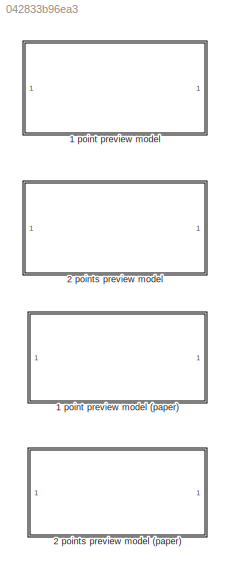
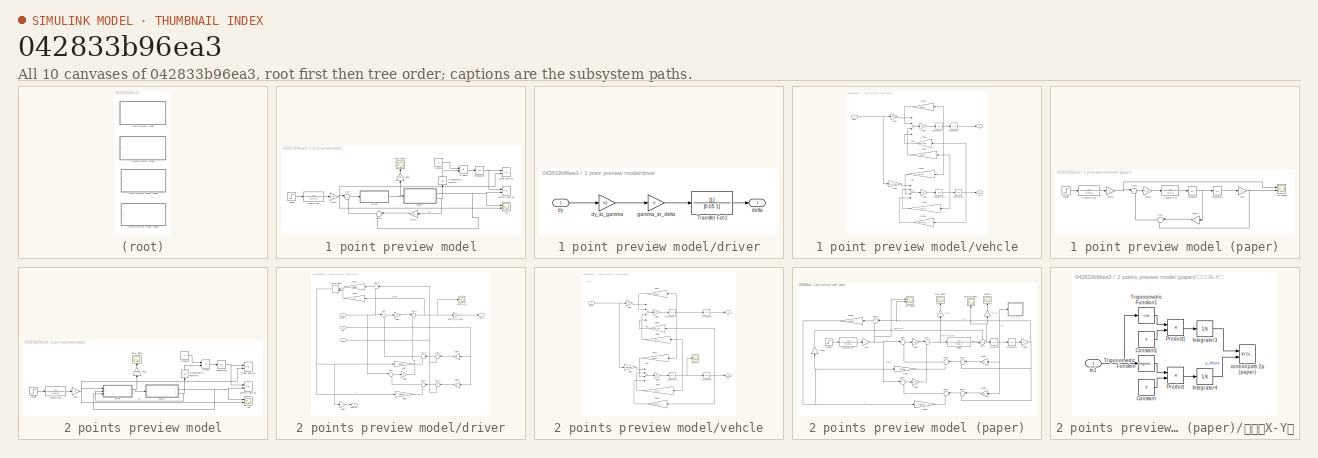
[diagram: thumbnail index - all 10 canvases of the model, root first then tree order]
MODEL slx_042833b96ea3
KIND model
CONFIG AbsTol = auto
CONFIG EnableMultiTasking = off
CONFIG FixedStep = auto
CONFIG MaxStep = auto
CONFIG MinStep = auto
CONFIG RelTol = 1e-3
CONFIG SampleTimeConstraint = Unconstrained
CONFIG Solver = VariableStepAuto
CONFIG SolverName = VariableStepAuto
CONFIG StartTime = 0.0
CONFIG StopTime = tf
BLOCK [SubSystem] 1 point preview model
  Ports = []
  RequestExecContextInheritance = off
BLOCK [SubSystem] 1 point preview model (paper)
  Ports = []
  RequestExecContextInheritance = off
BLOCK [Gain] 1 point preview model (paper)/Gain
  Gain = V
  OutDataTypeStr = Inherit: Inherit via internal rule
  ParamDataTypeStr = Inherit: Inherit via internal rule
  SaturateOnIntegerOverflow = off
BLOCK [Gain] 1 point preview model (paper)/Gain1
  Gain = 2*V/(lp*lp)
  OutDataTypeStr = Inherit: Inherit via internal rule
  ParamDataTypeStr = Inherit: Inherit via internal rule
  SaturateOnIntegerOverflow = off
BLOCK [Gain] 1 point preview model (paper)/Gain2
  Gain = lp
  OutDataTypeStr = Inherit: Inherit via internal rule
  ParamDataTypeStr = Inherit: Inherit via internal rule
  SaturateOnIntegerOverflow = off
BLOCK [Gain] 1 point preview model (paper)/Gain3
  Gain = y0
  OutDataTypeStr = Inherit: Inherit via internal rule
  ParamDataTypeStr = Inherit: Inherit via internal rule
  SaturateOnIntegerOverflow = off
BLOCK [Integrator] 1 point preview model (paper)/Integrator
  Ports = [1, 1]
BLOCK [Integrator] 1 point preview model (paper)/Integrator1
  Ports = [1, 1]
BLOCK [Sum] 1 point preview model (paper)/Sum
  IconShape = round
  InputSameDT = off
  Inputs = |++
  OutDataTypeStr = Inherit: Inherit via internal rule
  Ports = [2, 1]
  SaturateOnIntegerOverflow = off
BLOCK [Sum] 1 point preview model (paper)/Sum1
  IconShape = round
  InputSameDT = off
  Inputs = |+-
  OutDataTypeStr = Inherit: Inherit via internal rule
  Ports = [2, 1]
  SaturateOnIntegerOverflow = off
BLOCK [TransferFcn] 1 point preview model (paper)/Transfer Fcn
  Denominator = [0.1 1]
BLOCK [TransferFcn] 1 point preview model (paper)/Transfer Fcn1
  Denominator = [0.05 1]
BLOCK [Step] 1 point preview model (paper)/target 
  SampleTime = dt
BLOCK [Scope] 1 point preview model (paper)/y 1p (paper)
  Floating = off
  NumInputPorts = 2
  Ports = [2]
  ScopeSpecificationString = Simulink.scopes.TimeScopeBlockCfg('CurrentConfiguration', extmgr.ConfigurationSet(extmgr.Configuration('Core','General UI',true),extmgr.Configuration('Core','Source UI',true),extmgr.Configuration('Sources','WiredSimulink',true,'DataLoggingVariableName','ScopeData1'),extmgr.Configuration('Visuals','Time Domain',true,'SerializedDisplays',{struct('MinYLimReal','-0.26486','MaxYLimReal','2.38375','YLab...<+1398ch>
BLOCK [Constant] 1 point preview model/Constant
  Value = V
BLOCK [Gain] 1 point preview model/Gain
  Gain = y0
  OutDataTypeStr = Inherit: Inherit via internal rule
  ParamDataTypeStr = Inherit: Inherit via internal rule
  SaturateOnIntegerOverflow = off
BLOCK [Gain] 1 point preview model/Gain3
  Gain = lp
  OutDataTypeStr = Inherit: Inherit via internal rule
  ParamDataTypeStr = Inherit: Inherit via internal rule
  SaturateOnIntegerOverflow = off
BLOCK [Integrator] 1 point preview model/Integrator2
  Ports = [1, 1]
BLOCK [Product] 1 point preview model/Product
  InputSameDT = off
  OutDataTypeStr = Inherit: Inherit via internal rule
  Ports = [2, 1]
  RndMeth = Floor
  SaturateOnIntegerOverflow = off
BLOCK [Sum] 1 point preview model/Sum
  IconShape = round
  InputSameDT = off
  Inputs = |+-
  OutDataTypeStr = Inherit: Inherit via internal rule
  Ports = [2, 1]
  SaturateOnIntegerOverflow = off
BLOCK [Sum] 1 point preview model/Sum1
  IconShape = round
  InputSameDT = off
  Inputs = |++
  OutDataTypeStr = Inherit: Inherit via internal rule
  Ports = [2, 1]
  SaturateOnIntegerOverflow = off
BLOCK [TransferFcn] 1 point preview model/Transfer Fcn
  Denominator = [0.05 1]
BLOCK [Trigonometry] 1 point preview model/Trigonometric Function
  Operator = cos
  Ports = [1, 1]
BLOCK [Reference] 1 point preview model/controll path 1p  REF=simulink/Sinks/XY Graph
  Ports = [2]
  SourceBlock = simulink/Sinks/XY Graph
  SourceProductBaseCode = SL
  SourceProductName = Simulink
  SourceType = XY scope.
BLOCK [SubSystem] 1 point preview model/driver
  Ports = [1, 1]
  RequestExecContextInheritance = off
BLOCK [TransferFcn] 1 point preview model/driver/Transfer Fcn1
  Denominator = [0.05 1]
BLOCK [Outport] 1 point preview model/driver/delta
  IconDisplay = Port number
BLOCK [Inport] 1 point preview model/driver/dy
  IconDisplay = Port number
BLOCK [Gain] 1 point preview model/driver/dy_to_gamma
  Gain = h1
  OutDataTypeStr = Inherit: Inherit via internal rule
  ParamDataTypeStr = Inherit: Inherit via internal rule
  SaturateOnIntegerOverflow = off
BLOCK [Gain] 1 point preview model/driver/gamma_to_delta
  Gain = h
  OutDataTypeStr = Inherit: Inherit via internal rule
  ParamDataTypeStr = Inherit: Inherit via internal rule
  SaturateOnIntegerOverflow = off
BLOCK [Gain] 1 point preview model/gear
  Gain = n*180/pi
  OutDataTypeStr = Inherit: Inherit via internal rule
  ParamDataTypeStr = Inherit: Inherit via internal rule
  SaturateOnIntegerOverflow = off
BLOCK [Scope] 1 point preview model/steer angle
  Floating = off
  NumInputPorts = 1
  Ports = [1]
  ScopeSpecificationString = Simulink.scopes.TimeScopeBlockCfg('CurrentConfiguration', extmgr.ConfigurationSet(extmgr.Configuration('Core','General UI',true),extmgr.Configuration('Core','Source UI',true),extmgr.Configuration('Sources','WiredSimulink',true,'DataLoggingVariableName','ScopeData1'),extmgr.Configuration('Visuals','Time Domain',true,'SerializedDisplays',{struct('MinYLimReal','-5.65132','MaxYLimReal','15.49374','YLa...<+1368ch>
BLOCK [Step] 1 point preview model/target 
  SampleTime = dt
BLOCK [Reference] 1 point preview model/target path 1p  REF=simulink/Sinks/XY Graph
  Ports = [2]
  SourceBlock = simulink/Sinks/XY Graph
  SourceProductBaseCode = SL
  SourceProductName = Simulink
  SourceType = XY scope.
BLOCK [SubSystem] 1 point preview model/vehcle
  Ports = [1, 2]
  RequestExecContextInheritance = off
BLOCK [Sum] 1 point preview model/vehcle/Add
  InputSameDT = off
  Inputs = ++++
  OutDataTypeStr = Inherit: Inherit via internal rule
  Ports = [4, 1]
  SaturateOnIntegerOverflow = off
BLOCK [Sum] 1 point preview model/vehcle/Add1
  InputSameDT = off
  Inputs = ++++
  OutDataTypeStr = Inherit: Inherit via internal rule
  Ports = [4, 1]
  SaturateOnIntegerOverflow = off
BLOCK [Gain] 1 point preview model/vehcle/Gain1
  Gain = 2*Kf
  OutDataTypeStr = Inherit: Inherit via internal rule
  ParamDataTypeStr = Inherit: Inherit via internal rule
  SaturateOnIntegerOverflow = off
BLOCK [Gain] 1 point preview model/vehcle/Gain10
  Gain = 2*(Kf+Kr)
  OutDataTypeStr = Inherit: Inherit via internal rule
  ParamDataTypeStr = Inherit: Inherit via internal rule
  SaturateOnIntegerOverflow = off
BLOCK [Gain] 1 point preview model/vehcle/Gain11
  Gain = 2*(lf*Kf-lr*Kr)
  OutDataTypeStr = Inherit: Inherit via internal rule
  ParamDataTypeStr = Inherit: Inherit via internal rule
  SaturateOnIntegerOverflow = off
BLOCK [Gain] 1 point preview model/vehcle/Gain12
  Gain = -(2*(lf*Kf-lr*Kr)/V)
  OutDataTypeStr = Inherit: Inherit via internal rule
  ParamDataTypeStr = Inherit: Inherit via internal rule
  SaturateOnIntegerOverflow = off
BLOCK [Gain] 1 point preview model/vehcle/Gain4
  Gain = 2*lf*Kf
  OutDataTypeStr = Inherit: Inherit via internal rule
  ParamDataTypeStr = Inherit: Inherit via internal rule
  SaturateOnIntegerOverflow = off
BLOCK [Gain] 1 point preview model/vehcle/Gain5
  Gain = 1/m
  OutDataTypeStr = Inherit: Inherit via internal rule
  ParamDataTypeStr = Inherit: Inherit via internal rule
  SaturateOnIntegerOverflow = off
BLOCK [Gain] 1 point preview model/vehcle/Gain6
  Gain = 1/I
  OutDataTypeStr = Inherit: Inherit via internal rule
  ParamDataTypeStr = Inherit: Inherit via internal rule
  SaturateOnIntegerOverflow = off
BLOCK [Gain] 1 point preview model/vehcle/Gain7
  Gain = -(2*(Kf+Kr)/V)
  OutDataTypeStr = Inherit: Inherit via internal rule
  ParamDataTypeStr = Inherit: Inherit via internal rule
  SaturateOnIntegerOverflow = off
BLOCK [Gain] 1 point preview model/vehcle/Gain8
  Gain = -(2*(lf*Kf-lr*Kr)/V)
  OutDataTypeStr = Inherit: Inherit via internal rule
  ParamDataTypeStr = Inherit: Inherit via internal rule
  SaturateOnIntegerOverflow = off
BLOCK [Gain] 1 point preview model/vehcle/Gain9
  Gain = -(2*(lf*lf*Kf+lr*lr*Kr)/V)
  OutDataTypeStr = Inherit: Inherit via internal rule
  ParamDataTypeStr = Inherit: Inherit via internal rule
  SaturateOnIntegerOverflow = off
BLOCK [Integrator] 1 point preview model/vehcle/Integrator2
  Ports = [1, 1]
BLOCK [Integrator] 1 point preview model/vehcle/Integrator3
  Ports = [1, 1]
BLOCK [Integrator] 1 point preview model/vehcle/Integrator4
  Ports = [1, 1]
BLOCK [Integrator] 1 point preview model/vehcle/Integrator5
  Ports = [1, 1]
BLOCK [Inport] 1 point preview model/vehcle/delta
  IconDisplay = Port number
BLOCK [Outport] 1 point preview model/vehcle/phi
  IconDisplay = Port number
  Port = 2
BLOCK [Outport] 1 point preview model/vehcle/yc
  IconDisplay = Port number
BLOCK [Scope] 1 point preview model/y 1p
  Floating = off
  NumInputPorts = 2
  Ports = [2]
  ScopeSpecificationString = Simulink.scopes.TimeScopeBlockCfg('CurrentConfiguration', extmgr.ConfigurationSet(extmgr.Configuration('Core','General UI',true),extmgr.Configuration('Core','Source UI',true),extmgr.Configuration('Sources','WiredSimulink',true,'DataLoggingVariableName','ScopeData3'),extmgr.Configuration('Visuals','Time Domain',true,'SerializedDisplays',{struct('MinYLimReal','-0.28187','MaxYLimReal','2.53683','YLab...<+1374ch>
BLOCK [SubSystem] 2 points preview model
  Ports = []
  RequestExecContextInheritance = off
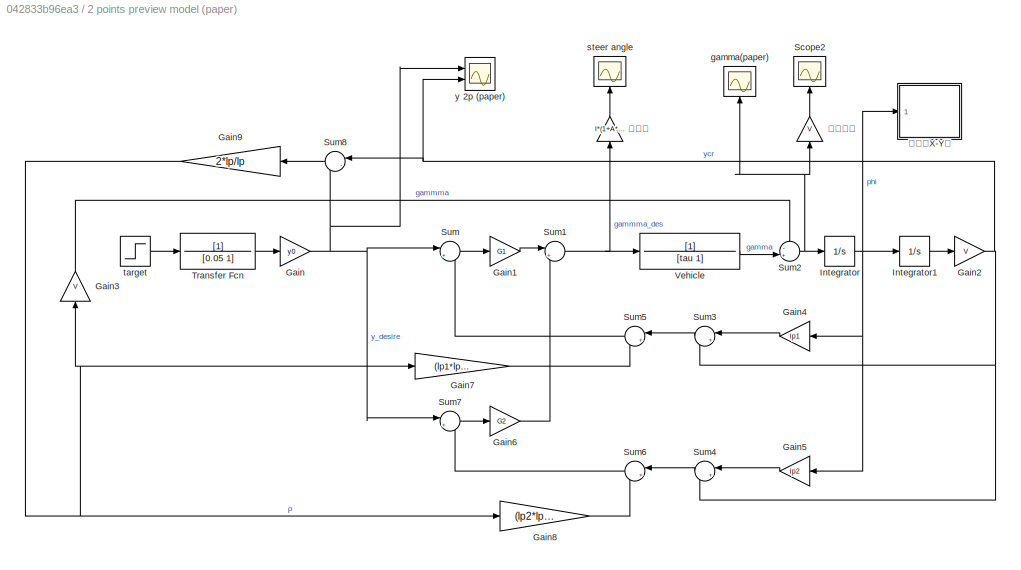
BLOCK [SubSystem] 2 points preview model (paper)
  Ports = []
  RequestExecContextInheritance = off
BLOCK [Gain] 2 points preview model (paper)/Gain
  Gain = y0
  OutDataTypeStr = Inherit: Inherit via internal rule
  ParamDataTypeStr = Inherit: Inherit via internal rule
  SaturateOnIntegerOverflow = off
BLOCK [Gain] 2 points preview model (paper)/Gain1
  Gain = G1
  OutDataTypeStr = Inherit: Inherit via internal rule
  ParamDataTypeStr = Inherit: Inherit via internal rule
  SaturateOnIntegerOverflow = off
BLOCK [Gain] 2 points preview model (paper)/Gain2
  Gain = V
  OutDataTypeStr = Inherit: Inherit via internal rule
  ParamDataTypeStr = Inherit: Inherit via internal rule
  SaturateOnIntegerOverflow = off
BLOCK [Gain] 2 points preview model (paper)/Gain3
  Gain = V
  OutDataTypeStr = Inherit: Inherit via internal rule
  ParamDataTypeStr = Inherit: Inherit via internal rule
  SaturateOnIntegerOverflow = off
BLOCK [Gain] 2 points preview model (paper)/Gain4
  Gain = lp1
  OutDataTypeStr = Inherit: Inherit via internal rule
  ParamDataTypeStr = Inherit: Inherit via internal rule
  SaturateOnIntegerOverflow = off
BLOCK [Gain] 2 points preview model (paper)/Gain5
  Gain = lp2
  OutDataTypeStr = Inherit: Inherit via internal rule
  ParamDataTypeStr = Inherit: Inherit via internal rule
  SaturateOnIntegerOverflow = off
BLOCK [Gain] 2 points preview model (paper)/Gain6
  Gain = G2
  OutDataTypeStr = Inherit: Inherit via internal rule
  ParamDataTypeStr = Inherit: Inherit via internal rule
  SaturateOnIntegerOverflow = off
BLOCK [Gain] 2 points preview model (paper)/Gain7
  Gain = (lp1*lp1)/2
  OutDataTypeStr = Inherit: Inherit via internal rule
  ParamDataTypeStr = Inherit: Inherit via internal rule
  SaturateOnIntegerOverflow = off
BLOCK [Gain] 2 points preview model (paper)/Gain8
  Gain = (lp2*lp2)/2
  OutDataTypeStr = Inherit: Inherit via internal rule
  ParamDataTypeStr = Inherit: Inherit via internal rule
  SaturateOnIntegerOverflow = off
BLOCK [Gain] 2 points preview model (paper)/Gain9
  Gain = 2*lp/lp
  OutDataTypeStr = Inherit: Inherit via internal rule
  ParamDataTypeStr = Inherit: Inherit via internal rule
  SaturateOnIntegerOverflow = off
BLOCK [Integrator] 2 points preview model (paper)/Integrator
  Ports = [1, 1]
BLOCK [Integrator] 2 points preview model (paper)/Integrator1
  Ports = [1, 1]
BLOCK [Scope] 2 points preview model (paper)/Scope2
  Floating = off
  NumInputPorts = 1
  Ports = [1]
  ScopeSpecificationString = Simulink.scopes.TimeScopeBlockCfg('CurrentConfiguration', extmgr.ConfigurationSet(extmgr.Configuration('Core','General UI',true),extmgr.Configuration('Core','Source UI',true),extmgr.Configuration('Sources','WiredSimulink',true,'DataLoggingVariableName','ScopeData1'),extmgr.Configuration('Visuals','Time Domain',true,'SerializedDisplays',{struct('MinYLimReal','-41.6964','MaxYLimReal','263.83293','YL...<+1400ch>
BLOCK [Sum] 2 points preview model (paper)/Sum
  IconShape = round
  InputSameDT = off
  Inputs = |+-
  OutDataTypeStr = Inherit: Inherit via internal rule
  Ports = [2, 1]
  SaturateOnIntegerOverflow = off
BLOCK [Sum] 2 points preview model (paper)/Sum1
  IconShape = round
  InputSameDT = off
  Inputs = |++
  OutDataTypeStr = Inherit: Inherit via internal rule
  Ports = [2, 1]
  SaturateOnIntegerOverflow = off
BLOCK [Sum] 2 points preview model (paper)/Sum2
  IconShape = round
  InputSameDT = off
  Inputs = -+|
  OutDataTypeStr = Inherit: Inherit via internal rule
  Ports = [2, 1]
  SaturateOnIntegerOverflow = off
BLOCK [Sum] 2 points preview model (paper)/Sum3
  IconShape = round
  InputSameDT = off
  Inputs = |++
  OutDataTypeStr = Inherit: Inherit via internal rule
  Ports = [2, 1]
  SaturateOnIntegerOverflow = off
BLOCK [Sum] 2 points preview model (paper)/Sum4
  IconShape = round
  InputSameDT = off
  Inputs = |++
  OutDataTypeStr = Inherit: Inherit via internal rule
  Ports = [2, 1]
  SaturateOnIntegerOverflow = off
BLOCK [Sum] 2 points preview model (paper)/Sum5
  IconShape = round
  InputSameDT = off
  Inputs = |+-
  OutDataTypeStr = Inherit: Inherit via internal rule
  Ports = [2, 1]
  SaturateOnIntegerOverflow = off
BLOCK [Sum] 2 points preview model (paper)/Sum6
  IconShape = round
  InputSameDT = off
  Inputs = |+-
  OutDataTypeStr = Inherit: Inherit via internal rule
  Ports = [2, 1]
  SaturateOnIntegerOverflow = off
BLOCK [Sum] 2 points preview model (paper)/Sum7
  IconShape = round
  InputSameDT = off
  Inputs = |+-
  OutDataTypeStr = Inherit: Inherit via internal rule
  Ports = [2, 1]
  SaturateOnIntegerOverflow = off
BLOCK [Sum] 2 points preview model (paper)/Sum8
  IconShape = round
  InputSameDT = off
  Inputs = |-+
  OutDataTypeStr = Inherit: Inherit via internal rule
  Ports = [2, 1]
  SaturateOnIntegerOverflow = off
BLOCK [TransferFcn] 2 points preview model (paper)/Transfer Fcn
  Denominator = [0.05 1]
BLOCK [TransferFcn] 2 points preview model (paper)/Vehicle
  Denominator = [tau 1]
BLOCK [Scope] 2 points preview model (paper)/gamma(paper)
  Floating = off
  NumInputPorts = 1
  Ports = [1]
  ScopeSpecificationString = Simulink.scopes.TimeScopeBlockCfg('CurrentConfiguration', extmgr.ConfigurationSet(extmgr.Configuration('Core','General UI',true),extmgr.Configuration('Core','Source UI',true),extmgr.Configuration('Sources','WiredSimulink',true,'DataLoggingVariableName','ScopeData3'),extmgr.Configuration('Visuals','Time Domain',true,'SerializedDisplays',{struct('MinYLimReal','-0.58711','MaxYLimReal','2.23589','YLab...<+1392ch>
BLOCK [Scope] 2 points preview model (paper)/steer angle
  Floating = off
  NumInputPorts = 1
  Ports = [1]
  ScopeSpecificationString = Simulink.scopes.TimeScopeBlockCfg('CurrentConfiguration', extmgr.ConfigurationSet(extmgr.Configuration('Core','General UI',true),extmgr.Configuration('Core','Source UI',true),extmgr.Configuration('Sources','WiredSimulink',true,'DataLoggingVariableName','ScopeData2'),extmgr.Configuration('Visuals','Time Domain',true,'SerializedDisplays',{struct('MinYLimReal','-50.34103','MaxYLimReal','453.06931','Y...<+1372ch>
BLOCK [Step] 2 points preview model (paper)/target 
  SampleTime = dt
BLOCK [Scope] 2 points preview model (paper)/y 2p (paper)
  Floating = off
  NumInputPorts = 2
  Ports = [2]
  ScopeSpecificationString = Simulink.scopes.TimeScopeBlockCfg('CurrentConfiguration', extmgr.ConfigurationSet(extmgr.Configuration('Core','General UI',true),extmgr.Configuration('Core','Source UI',true),extmgr.Configuration('Sources','WiredSimulink',true,'DataLoggingVariableName','ScopeData1'),extmgr.Configuration('Visuals','Time Domain',true,'SerializedDisplays',{struct('MinYLimReal','-0.25','MaxYLimReal','2.25','YLabelReal...<+1382ch>
BLOCK [Gain] 2 points preview model (paper)/操舵角
  Gain = l*(1+A*V*V)/V*n
  OutDataTypeStr = Inherit: Inherit via internal rule
  ParamDataTypeStr = Inherit: Inherit via internal rule
  SaturateOnIntegerOverflow = off
BLOCK [Gain] 2 points preview model (paper)/横加速度
  Gain = V
  OutDataTypeStr = Inherit: Inherit via internal rule
  ParamDataTypeStr = Inherit: Inherit via internal rule
  SaturateOnIntegerOverflow = off
BLOCK [SubSystem] 2 points preview model (paper)/表示（X-Y）
  Ports = [1]
  RequestExecContextInheritance = off
BLOCK [Constant] 2 points preview model (paper)/表示（X-Y）/Constant
  Value = V
BLOCK [Constant] 2 points preview model (paper)/表示（X-Y）/Constant1
  Value = V
BLOCK [Inport] 2 points preview model (paper)/表示（X-Y）/In1
  IconDisplay = Port number
BLOCK [Integrator] 2 points preview model (paper)/表示（X-Y）/Integrator3
  Ports = [1, 1]
BLOCK [Integrator] 2 points preview model (paper)/表示（X-Y）/Integrator4
  Ports = [1, 1]
BLOCK [Product] 2 points preview model (paper)/表示（X-Y）/Product
  InputSameDT = off
  OutDataTypeStr = Inherit: Inherit via internal rule
  Ports = [2, 1]
  RndMeth = Floor
  SaturateOnIntegerOverflow = off
BLOCK [Product] 2 points preview model (paper)/表示（X-Y）/Product1
  InputSameDT = off
  OutDataTypeStr = Inherit: Inherit via internal rule
  Ports = [2, 1]
  RndMeth = Floor
  SaturateOnIntegerOverflow = off
BLOCK [Trigonometry] 2 points preview model (paper)/表示（X-Y）/Trigonometric Function
  Ports = [1, 1]
BLOCK [Trigonometry] 2 points preview model (paper)/表示（X-Y）/Trigonometric Function1
  Operator = cos
  Ports = [1, 1]
BLOCK [Reference] 2 points preview model (paper)/表示（X-Y）/controll path 2p (paper)  REF=simulink/Sinks/XY Graph
  Ports = [2]
  SourceBlock = simulink/Sinks/XY Graph
  SourceProductBaseCode = SL
  SourceProductName = Simulink
  SourceType = XY scope.
BLOCK [Constant] 2 points preview model/Constant
  Value = V
BLOCK [Gain] 2 points preview model/Gain
  Gain = y0
  OutDataTypeStr = Inherit: Inherit via internal rule
  ParamDataTypeStr = Inherit: Inherit via internal rule
  SaturateOnIntegerOverflow = off
BLOCK [Integrator] 2 points preview model/Integrator2
  Ports = [1, 1]
BLOCK [Product] 2 points preview model/Product
  InputSameDT = off
  OutDataTypeStr = Inherit: Inherit via internal rule
  Ports = [2, 1]
  RndMeth = Floor
  SaturateOnIntegerOverflow = off
BLOCK [TransferFcn] 2 points preview model/Transfer Fcn
  Denominator = [0.05 1]
BLOCK [Trigonometry] 2 points preview model/Trigonometric Function
  Operator = cos
  Ports = [1, 1]
BLOCK [Reference] 2 points preview model/controll path 2p  REF=simulink/Sinks/XY Graph
  Ports = [2]
  SourceBlock = simulink/Sinks/XY Graph
  SourceProductBaseCode = SL
  SourceProductName = Simulink
  SourceType = XY scope.
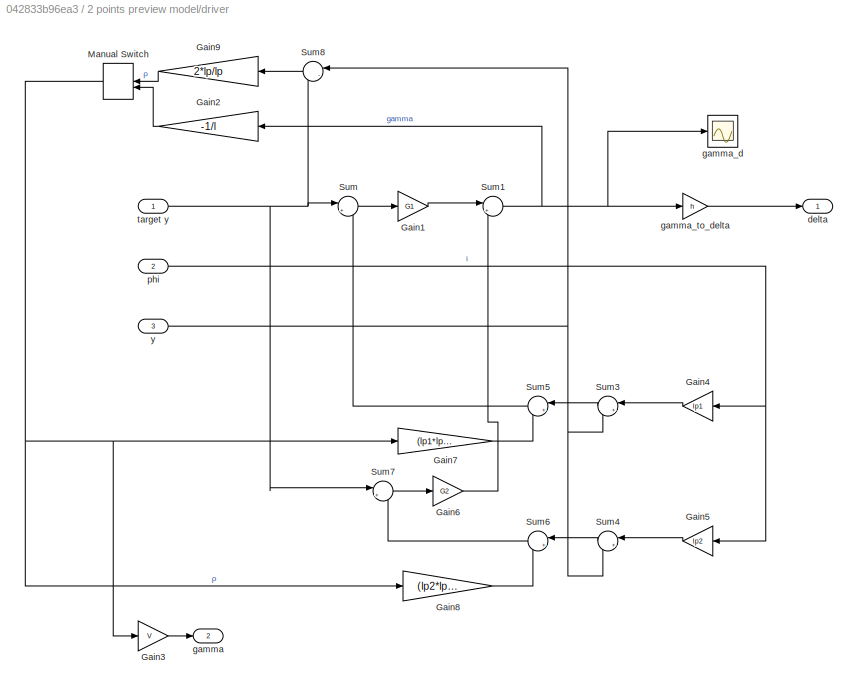
BLOCK [SubSystem] 2 points preview model/driver
  Ports = [3, 2]
  RequestExecContextInheritance = off
BLOCK [Gain] 2 points preview model/driver/Gain1
  Gain = G1
  OutDataTypeStr = Inherit: Inherit via internal rule
  ParamDataTypeStr = Inherit: Inherit via internal rule
  SaturateOnIntegerOverflow = off
BLOCK [Gain] 2 points preview model/driver/Gain2
  Gain = -1/l
  OutDataTypeStr = Inherit: Inherit via internal rule
  ParamDataTypeStr = Inherit: Inherit via internal rule
  SaturateOnIntegerOverflow = off
BLOCK [Gain] 2 points preview model/driver/Gain3
  Gain = V
  OutDataTypeStr = Inherit: Inherit via internal rule
  ParamDataTypeStr = Inherit: Inherit via internal rule
  SaturateOnIntegerOverflow = off
BLOCK [Gain] 2 points preview model/driver/Gain4
  Gain = lp1
  OutDataTypeStr = Inherit: Inherit via internal rule
  ParamDataTypeStr = Inherit: Inherit via internal rule
  SaturateOnIntegerOverflow = off
BLOCK [Gain] 2 points preview model/driver/Gain5
  Gain = lp2
  OutDataTypeStr = Inherit: Inherit via internal rule
  ParamDataTypeStr = Inherit: Inherit via internal rule
  SaturateOnIntegerOverflow = off
BLOCK [Gain] 2 points preview model/driver/Gain6
  Gain = G2
  OutDataTypeStr = Inherit: Inherit via internal rule
  ParamDataTypeStr = Inherit: Inherit via internal rule
  SaturateOnIntegerOverflow = off
BLOCK [Gain] 2 points preview model/driver/Gain7
  Gain = (lp1*lp1)/2
  OutDataTypeStr = Inherit: Inherit via internal rule
  ParamDataTypeStr = Inherit: Inherit via internal rule
  SaturateOnIntegerOverflow = off
BLOCK [Gain] 2 points preview model/driver/Gain8
  Gain = (lp2*lp2)/2
  OutDataTypeStr = Inherit: Inherit via internal rule
  ParamDataTypeStr = Inherit: Inherit via internal rule
  SaturateOnIntegerOverflow = off
BLOCK [Gain] 2 points preview model/driver/Gain9
  Gain = 2*lp/lp
  OutDataTypeStr = Inherit: Inherit via internal rule
  ParamDataTypeStr = Inherit: Inherit via internal rule
  SaturateOnIntegerOverflow = off
BLOCK [ManualSwitch] 2 points preview model/driver/Manual Switch
BLOCK [Sum] 2 points preview model/driver/Sum
  IconShape = round
  InputSameDT = off
  Inputs = |+-
  OutDataTypeStr = Inherit: Inherit via internal rule
  Ports = [2, 1]
  SaturateOnIntegerOverflow = off
BLOCK [Sum] 2 points preview model/driver/Sum1
  IconShape = round
  InputSameDT = off
  Inputs = |++
  OutDataTypeStr = Inherit: Inherit via internal rule
  Ports = [2, 1]
  SaturateOnIntegerOverflow = off
BLOCK [Sum] 2 points preview model/driver/Sum3
  IconShape = round
  InputSameDT = off
  Inputs = |++
  OutDataTypeStr = Inherit: Inherit via internal rule
  Ports = [2, 1]
  SaturateOnIntegerOverflow = off
BLOCK [Sum] 2 points preview model/driver/Sum4
  IconShape = round
  InputSameDT = off
  Inputs = |++
  OutDataTypeStr = Inherit: Inherit via internal rule
  Ports = [2, 1]
  SaturateOnIntegerOverflow = off
BLOCK [Sum] 2 points preview model/driver/Sum5
  IconShape = round
  InputSameDT = off
  Inputs = |+-
  OutDataTypeStr = Inherit: Inherit via internal rule
  Ports = [2, 1]
  SaturateOnIntegerOverflow = off
BLOCK [Sum] 2 points preview model/driver/Sum6
  IconShape = round
  InputSameDT = off
  Inputs = |+-
  OutDataTypeStr = Inherit: Inherit via internal rule
  Ports = [2, 1]
  SaturateOnIntegerOverflow = off
BLOCK [Sum] 2 points preview model/driver/Sum7
  IconShape = round
  InputSameDT = off
  Inputs = |+-
  OutDataTypeStr = Inherit: Inherit via internal rule
  Ports = [2, 1]
  SaturateOnIntegerOverflow = off
BLOCK [Sum] 2 points preview model/driver/Sum8
  IconShape = round
  InputSameDT = off
  Inputs = |-+
  OutDataTypeStr = Inherit: Inherit via internal rule
  Ports = [2, 1]
  SaturateOnIntegerOverflow = off
BLOCK [Outport] 2 points preview model/driver/delta
  IconDisplay = Port number
BLOCK [Outport] 2 points preview model/driver/gamma
  IconDisplay = Port number
  Port = 2
BLOCK [Scope] 2 points preview model/driver/gamma_d
  Floating = off
  NumInputPorts = 1
  Ports = [1]
  ScopeSpecificationString = Simulink.scopes.TimeScopeBlockCfg('CurrentConfiguration', extmgr.ConfigurationSet(extmgr.Configuration('Core','General UI',true),extmgr.Configuration('Core','Source UI',true),extmgr.Configuration('Sources','WiredSimulink',true,'DataLoggingVariableName','ScopeData1'),extmgr.Configuration('Visuals','Time Domain',true,'SerializedDisplays',{struct('MinYLimReal','-70.42419','MaxYLimReal','57.90489','YL...<+1396ch>
BLOCK [Gain] 2 points preview model/driver/gamma_to_delta
  Gain = h
  OutDataTypeStr = Inherit: Inherit via internal rule
  ParamDataTypeStr = Inherit: Inherit via internal rule
  SaturateOnIntegerOverflow = off
BLOCK [Inport] 2 points preview model/driver/phi
  IconDisplay = Port number
  Port = 2
BLOCK [Inport] 2 points preview model/driver/target y
  IconDisplay = Port number
BLOCK [Inport] 2 points preview model/driver/y
  IconDisplay = Port number
  Port = 3
BLOCK [Gain] 2 points preview model/gear
  Gain = n*180/pi
  OutDataTypeStr = Inherit: Inherit via internal rule
  ParamDataTypeStr = Inherit: Inherit via internal rule
  SaturateOnIntegerOverflow = off
BLOCK [Scope] 2 points preview model/steer angle
  Floating = off
  NumInputPorts = 1
  Ports = [1]
  ScopeSpecificationString = Simulink.scopes.TimeScopeBlockCfg('CurrentConfiguration', extmgr.ConfigurationSet(extmgr.Configuration('Core','General UI',true),extmgr.Configuration('Core','Source UI',true),extmgr.Configuration('Sources','WiredSimulink',true,'DataLoggingVariableName','ScopeData1'),extmgr.Configuration('Visuals','Time Domain',true,'SerializedDisplays',{struct('MinYLimReal','-13597.38287','MaxYLimReal','11180.1765...<+1393ch>
BLOCK [Step] 2 points preview model/target 
  SampleTime = dt
BLOCK [Reference] 2 points preview model/target path 2p  REF=simulink/Sinks/XY Graph
  Ports = [2]
  SourceBlock = simulink/Sinks/XY Graph
  SourceProductBaseCode = SL
  SourceProductName = Simulink
  SourceType = XY scope.
BLOCK [SubSystem] 2 points preview model/vehcle
  Ports = [1, 2]
  RequestExecContextInheritance = off
BLOCK [Sum] 2 points preview model/vehcle/Add
  InputSameDT = off
  Inputs = ++++
  OutDataTypeStr = Inherit: Inherit via internal rule
  Ports = [4, 1]
  SaturateOnIntegerOverflow = off
BLOCK [Sum] 2 points preview model/vehcle/Add1
  InputSameDT = off
  Inputs = ++++
  OutDataTypeStr = Inherit: Inherit via internal rule
  Ports = [4, 1]
  SaturateOnIntegerOverflow = off
BLOCK [Gain] 2 points preview model/vehcle/Gain1
  Gain = 2*Kf
  OutDataTypeStr = Inherit: Inherit via internal rule
  ParamDataTypeStr = Inherit: Inherit via internal rule
  SaturateOnIntegerOverflow = off
BLOCK [Gain] 2 points preview model/vehcle/Gain10
  Gain = 2*(Kf+Kr)
  OutDataTypeStr = Inherit: Inherit via internal rule
  ParamDataTypeStr = Inherit: Inherit via internal rule
  SaturateOnIntegerOverflow = off
BLOCK [Gain] 2 points preview model/vehcle/Gain11
  Gain = 2*(lf*Kf-lr*Kr)
  OutDataTypeStr = Inherit: Inherit via internal rule
  ParamDataTypeStr = Inherit: Inherit via internal rule
  SaturateOnIntegerOverflow = off
BLOCK [Gain] 2 points preview model/vehcle/Gain12
  Gain = -(2*(lf*Kf-lr*Kr)/V)
  OutDataTypeStr = Inherit: Inherit via internal rule
  ParamDataTypeStr = Inherit: Inherit via internal rule
  SaturateOnIntegerOverflow = off
BLOCK [Gain] 2 points preview model/vehcle/Gain4
  Gain = 2*lf*Kf
  OutDataTypeStr = Inherit: Inherit via internal rule
  ParamDataTypeStr = Inherit: Inherit via internal rule
  SaturateOnIntegerOverflow = off
BLOCK [Gain] 2 points preview model/vehcle/Gain5
  Gain = 1/m
  OutDataTypeStr = Inherit: Inherit via internal rule
  ParamDataTypeStr = Inherit: Inherit via internal rule
  SaturateOnIntegerOverflow = off
BLOCK [Gain] 2 points preview model/vehcle/Gain6
  Gain = 1/I
  OutDataTypeStr = Inherit: Inherit via internal rule
  ParamDataTypeStr = Inherit: Inherit via internal rule
  SaturateOnIntegerOverflow = off
BLOCK [Gain] 2 points preview model/vehcle/Gain7
  Gain = -(2*(Kf+Kr)/V)
  OutDataTypeStr = Inherit: Inherit via internal rule
  ParamDataTypeStr = Inherit: Inherit via internal rule
  SaturateOnIntegerOverflow = off
BLOCK [Gain] 2 points preview model/vehcle/Gain8
  Gain = -(2*(lf*Kf-lr*Kr)/V)
  OutDataTypeStr = Inherit: Inherit via internal rule
  ParamDataTypeStr = Inherit: Inherit via internal rule
  SaturateOnIntegerOverflow = off
BLOCK [Gain] 2 points preview model/vehcle/Gain9
  Gain = -(2*(lf*lf*Kf+lr*lr*Kr)/V)
  OutDataTypeStr = Inherit: Inherit via internal rule
  ParamDataTypeStr = Inherit: Inherit via internal rule
  SaturateOnIntegerOverflow = off
BLOCK [Integrator] 2 points preview model/vehcle/Integrator2
  Ports = [1, 1]
BLOCK [Integrator] 2 points preview model/vehcle/Integrator3
  Ports = [1, 1]
BLOCK [Integrator] 2 points preview model/vehcle/Integrator4
  Ports = [1, 1]
BLOCK [Integrator] 2 points preview model/vehcle/Integrator5
  Ports = [1, 1]
BLOCK [Inport] 2 points preview model/vehcle/delta
  IconDisplay = Port number
BLOCK [Scope] 2 points preview model/vehcle/gamma
  Floating = off
  NumInputPorts = 1
  Ports = [1]
  ScopeSpecificationString = Simulink.scopes.TimeScopeBlockCfg('CurrentConfiguration', extmgr.ConfigurationSet(extmgr.Configuration('Core','General UI',true),extmgr.Configuration('Core','Source UI',true),extmgr.Configuration('Sources','WiredSimulink',true,'DataLoggingVariableName','ScopeData1'),extmgr.Configuration('Visuals','Time Domain',true,'SerializedDisplays',{struct('MinYLimReal','-21.51517','MaxYLimReal','20.16453','YL...<+1431ch>
BLOCK [Outport] 2 points preview model/vehcle/phi
  IconDisplay = Port number
  Port = 2
BLOCK [Outport] 2 points preview model/vehcle/yc
  IconDisplay = Port number
BLOCK [Scope] 2 points preview model/y 2p
  Floating = off
  NumInputPorts = 2
  Ports = [2]
  ScopeSpecificationString = Simulink.scopes.TimeScopeBlockCfg('CurrentConfiguration', extmgr.ConfigurationSet(extmgr.Configuration('Core','General UI',true),extmgr.Configuration('Core','Source UI',true),extmgr.Configuration('Sources','WiredSimulink',true,'DataLoggingVariableName','ScopeData3'),extmgr.Configuration('Visuals','Time Domain',true,'SerializedDisplays',{struct('MinYLimReal','-0.30608','MaxYLimReal','2.75474','YLab...<+1374ch>
ANNOTATION 2 points preview model/vehcle: 絶対座標系
LINE 1 point preview model (paper)/Gain1:1 -> 1 point preview model (paper)/Transfer Fcn:1
LINE 1 point preview model (paper)/Gain2:1 -> 1 point preview model (paper)/Sum:1
NET 1 point preview model (paper)/Gain3:1 -> 1 point preview model (paper)/Sum1:1, 1 point preview model (paper)/y 1p (paper):1
NET 1 point preview model (paper)/Gain:1 -> 1 point preview model (paper)/Sum:2, 1 point preview model (paper)/y 1p (paper):2
LINE 1 point preview model (paper)/Integrator1:1 -> 1 point preview model (paper)/Gain:1
NET 1 point preview model (paper)/Integrator:1 -> 1 point preview model (paper)/Gain2:1, 1 point preview model (paper)/Integrator1:1
LINE 1 point preview model (paper)/Sum1:1 -> 1 point preview model (paper)/Gain1:1
LINE 1 point preview model (paper)/Sum:1 -> 1 point preview model (paper)/Sum1:2
LINE 1 point preview model (paper)/Transfer Fcn1:1 -> 1 point preview model (paper)/Gain3:1
LINE 1 point preview model (paper)/Transfer Fcn:1 -> 1 point preview model (paper)/Integrator:1
LINE 1 point preview model (paper)/target :1 -> 1 point preview model (paper)/Transfer Fcn1:1
LINE 1 point preview model/Constant:1 -> 1 point preview model/Product:1
LINE 1 point preview model/Gain3:1 -> 1 point preview model/Sum1:1
NET 1 point preview model/Gain:1 -> 1 point preview model/Sum:1, 1 point preview model/target path 1p:2, 1 point preview model/y 1p:2
NET 1 point preview model/Integrator2:1 -> 1 point preview model/controll path 1p:1, 1 point preview model/target path 1p:1
LINE 1 point preview model/Product:1 -> 1 point preview model/Integrator2:1
LINE 1 point preview model/Sum1:1 -> 1 point preview model/Sum:2
LINE 1 point preview model/Sum:1 -> 1 point preview model/driver:1
LINE 1 point preview model/Transfer Fcn:1 -> 1 point preview model/Gain:1
LINE 1 point preview model/Trigonometric Function:1 -> 1 point preview model/Product:2
LINE 1 point preview model/driver/Transfer Fcn1:1 -> 1 point preview model/driver/delta:1
LINE 1 point preview model/driver/dy:1 -> 1 point preview model/driver/dy_to_gamma:1
LINE 1 point preview model/driver/dy_to_gamma:1 -> 1 point preview model/driver/gamma_to_delta:1
LINE 1 point preview model/driver/gamma_to_delta:1 -> 1 point preview model/driver/Transfer Fcn1:1
NET 1 point preview model/driver:1 -> 1 point preview model/gear:1, 1 point preview model/vehcle:1
LINE 1 point preview model/gear:1 -> 1 point preview model/steer angle:1
LINE 1 point preview model/target :1 -> 1 point preview model/Transfer Fcn:1
LINE 1 point preview model/vehcle/Add1:1 -> 1 point preview model/vehcle/Gain5:1
LINE 1 point preview model/vehcle/Add:1 -> 1 point preview model/vehcle/Gain6:1
LINE 1 point preview model/vehcle/Gain10:1 -> 1 point preview model/vehcle/Add1:4
LINE 1 point preview model/vehcle/Gain11:1 -> 1 point preview model/vehcle/Add:4
LINE 1 point preview model/vehcle/Gain12:1 -> 1 point preview model/vehcle/Add:3
LINE 1 point preview model/vehcle/Gain1:1 -> 1 point preview model/vehcle/Add1:1
LINE 1 point preview model/vehcle/Gain4:1 -> 1 point preview model/vehcle/Add:1
LINE 1 point preview model/vehcle/Gain5:1 -> 1 point preview model/vehcle/Integrator2:1
LINE 1 point preview model/vehcle/Gain6:1 -> 1 point preview model/vehcle/Integrator3:1
LINE 1 point preview model/vehcle/Gain7:1 -> 1 point preview model/vehcle/Add1:2
LINE 1 point preview model/vehcle/Gain8:1 -> 1 point preview model/vehcle/Add1:3
LINE 1 point preview model/vehcle/Gain9:1 -> 1 point preview model/vehcle/Add:2
NET 1 point preview model/vehcle/Integrator2:1 -> 1 point preview model/vehcle/Gain12:1, 1 point preview model/vehcle/Gain7:1, 1 point preview model/vehcle/Integrator4:1
NET 1 point preview model/vehcle/Integrator3:1 -> 1 point preview model/vehcle/Gain8:1, 1 point preview model/vehcle/Gain9:1, 1 point preview model/vehcle/Integrator5:1
LINE 1 point preview model/vehcle/Integrator4:1 -> 1 point preview model/vehcle/yc:1
NET 1 point preview model/vehcle/Integrator5:1 -> 1 point preview model/vehcle/Gain10:1, 1 point preview model/vehcle/Gain11:1, 1 point preview model/vehcle/phi:1
NET 1 point preview model/vehcle/delta:1 -> 1 point preview model/vehcle/Gain1:1, 1 point preview model/vehcle/Gain4:1
NET 1 point preview model/vehcle:1 -> 1 point preview model/Sum1:2, 1 point preview model/controll path 1p:2, 1 point preview model/y 1p:1
NET 1 point preview model/vehcle:2 -> 1 point preview model/Gain3:1, 1 point preview model/Trigonometric Function:1
LINE 2 points preview model (paper)/Gain1:1 -> 2 points preview model (paper)/Sum1:1
NET 2 points preview model (paper)/Gain2:1 -> 2 points preview model (paper)/Sum3:2, 2 points preview model (paper)/Sum4:2, 2 points preview model (paper)/Sum8:1, 2 points preview model (paper)/y 2p (paper):2
LINE 2 points preview model (paper)/Gain3:1 -> 2 points preview model (paper)/Sum2:1
LINE 2 points preview model (paper)/Gain4:1 -> 2 points preview model (paper)/Sum3:1
LINE 2 points preview model (paper)/Gain5:1 -> 2 points preview model (paper)/Sum4:1
LINE 2 points preview model (paper)/Gain6:1 -> 2 points preview model (paper)/Sum1:2
LINE 2 points preview model (paper)/Gain7:1 -> 2 points preview model (paper)/Sum5:2
LINE 2 points preview model (paper)/Gain8:1 -> 2 points preview model (paper)/Sum6:2
NET 2 points preview model (paper)/Gain9:1 -> 2 points preview model (paper)/Gain3:1, 2 points preview model (paper)/Gain7:1, 2 points preview model (paper)/Gain8:1
NET 2 points preview model (paper)/Gain:1 -> 2 points preview model (paper)/Sum7:1, 2 points preview model (paper)/Sum8:2, 2 points preview model (paper)/Sum:1, 2 points preview model (paper)/y 2p (paper):1
LINE 2 points preview model (paper)/Integrator1:1 -> 2 points preview model (paper)/Gain2:1
NET 2 points preview model (paper)/Integrator:1 -> 2 points preview model (paper)/Gain4:1, 2 points preview model (paper)/Gain5:1, 2 points preview model (paper)/Integrator1:1, 2 points preview model (paper)/表示（X-Y）:1
NET 2 points preview model (paper)/Sum1:1 -> 2 points preview model (paper)/Vehicle:1, 2 points preview model (paper)/操舵角:1
NET 2 points preview model (paper)/Sum2:1 -> 2 points preview model (paper)/Integrator:1, 2 points preview model (paper)/gamma(paper):1, 2 points preview model (paper)/横加速度:1
LINE 2 points preview model (paper)/Sum3:1 -> 2 points preview model (paper)/Sum5:1
LINE 2 points preview model (paper)/Sum4:1 -> 2 points preview model (paper)/Sum6:1
LINE 2 points preview model (paper)/Sum5:1 -> 2 points preview model (paper)/Sum:2
LINE 2 points preview model (paper)/Sum6:1 -> 2 points preview model (paper)/Sum7:2
LINE 2 points preview model (paper)/Sum7:1 -> 2 points preview model (paper)/Gain6:1
LINE 2 points preview model (paper)/Sum8:1 -> 2 points preview model (paper)/Gain9:1
LINE 2 points preview model (paper)/Sum:1 -> 2 points preview model (paper)/Gain1:1
LINE 2 points preview model (paper)/Transfer Fcn:1 -> 2 points preview model (paper)/Gain:1
LINE 2 points preview model (paper)/Vehicle:1 -> 2 points preview model (paper)/Sum2:2
LINE 2 points preview model (paper)/target :1 -> 2 points preview model (paper)/Transfer Fcn:1
LINE 2 points preview model (paper)/操舵角:1 -> 2 points preview model (paper)/steer angle:1
LINE 2 points preview model (paper)/横加速度:1 -> 2 points preview model (paper)/Scope2:1
LINE 2 points preview model (paper)/表示（X-Y）/Constant1:1 -> 2 points preview model (paper)/表示（X-Y）/Product1:2
LINE 2 points preview model (paper)/表示（X-Y）/Constant:1 -> 2 points preview model (paper)/表示（X-Y）/Product:2
NET 2 points preview model (paper)/表示（X-Y）/In1:1 -> 2 points preview model (paper)/表示（X-Y）/Trigonometric Function1:1, 2 points preview model (paper)/表示（X-Y）/Trigonometric Function:1
LINE 2 points preview model (paper)/表示（X-Y）/Integrator3:1 -> 2 points preview model (paper)/表示（X-Y）/controll path 2p (paper):1
LINE 2 points preview model (paper)/表示（X-Y）/Integrator4:1 -> 2 points preview model (paper)/表示（X-Y）/controll path 2p (paper):2
LINE 2 points preview model (paper)/表示（X-Y）/Product1:1 -> 2 points preview model (paper)/表示（X-Y）/Integrator3:1
LINE 2 points preview model (paper)/表示（X-Y）/Product:1 -> 2 points preview model (paper)/表示（X-Y）/Integrator4:1
LINE 2 points preview model (paper)/表示（X-Y）/Trigonometric Function1:1 -> 2 points preview model (paper)/表示（X-Y）/Product1:1
LINE 2 points preview model (paper)/表示（X-Y）/Trigonometric Function:1 -> 2 points preview model (paper)/表示（X-Y）/Product:1
LINE 2 points preview model/Constant:1 -> 2 points preview model/Product:1
NET 2 points preview model/Gain:1 -> 2 points preview model/driver:1, 2 points preview model/target path 2p:2, 2 points preview model/y 2p:2
NET 2 points preview model/Integrator2:1 -> 2 points preview model/controll path 2p:1, 2 points preview model/target path 2p:1
LINE 2 points preview model/Product:1 -> 2 points preview model/Integrator2:1
LINE 2 points preview model/Transfer Fcn:1 -> 2 points preview model/Gain:1
LINE 2 points preview model/Trigonometric Function:1 -> 2 points preview model/Product:2
LINE 2 points preview model/driver/Gain1:1 -> 2 points preview model/driver/Sum1:1
LINE 2 points preview model/driver/Gain2:1 -> 2 points preview model/driver/Manual Switch:2
LINE 2 points preview model/driver/Gain3:1 -> 2 points preview model/driver/gamma:1
LINE 2 points preview model/driver/Gain4:1 -> 2 points preview model/driver/Sum3:1
LINE 2 points preview model/driver/Gain5:1 -> 2 points preview model/driver/Sum4:1
LINE 2 points preview model/driver/Gain6:1 -> 2 points preview model/driver/Sum1:2
LINE 2 points preview model/driver/Gain7:1 -> 2 points preview model/driver/Sum5:2
LINE 2 points preview model/driver/Gain8:1 -> 2 points preview model/driver/Sum6:2
LINE 2 points preview model/driver/Gain9:1 -> 2 points preview model/driver/Manual Switch:1
NET 2 points preview model/driver/Manual Switch:1 -> 2 points preview model/driver/Gain3:1, 2 points preview model/driver/Gain7:1, 2 points preview model/driver/Gain8:1
NET 2 points preview model/driver/Sum1:1 -> 2 points preview model/driver/Gain2:1, 2 points preview model/driver/gamma_d:1, 2 points preview model/driver/gamma_to_delta:1
LINE 2 points preview model/driver/Sum3:1 -> 2 points preview model/driver/Sum5:1
LINE 2 points preview model/driver/Sum4:1 -> 2 points preview model/driver/Sum6:1
LINE 2 points preview model/driver/Sum5:1 -> 2 points preview model/driver/Sum:2
LINE 2 points preview model/driver/Sum6:1 -> 2 points preview model/driver/Sum7:2
LINE 2 points preview model/driver/Sum7:1 -> 2 points preview model/driver/Gain6:1
LINE 2 points preview model/driver/Sum8:1 -> 2 points preview model/driver/Gain9:1
LINE 2 points preview model/driver/Sum:1 -> 2 points preview model/driver/Gain1:1
LINE 2 points preview model/driver/gamma_to_delta:1 -> 2 points preview model/driver/delta:1
NET 2 points preview model/driver/phi:1 -> 2 points preview model/driver/Gain4:1, 2 points preview model/driver/Gain5:1
NET 2 points preview model/driver/target y:1 -> 2 points preview model/driver/Sum7:1, 2 points preview model/driver/Sum8:2, 2 points preview model/driver/Sum:1
NET 2 points preview model/driver/y:1 -> 2 points preview model/driver/Sum3:2, 2 points preview model/driver/Sum4:2, 2 points preview model/driver/Sum8:1
NET 2 points preview model/driver:1 -> 2 points preview model/gear:1, 2 points preview model/vehcle:1
LINE 2 points preview model/gear:1 -> 2 points preview model/steer angle:1
LINE 2 points preview model/target :1 -> 2 points preview model/Transfer Fcn:1
LINE 2 points preview model/vehcle/Add1:1 -> 2 points preview model/vehcle/Gain5:1
LINE 2 points preview model/vehcle/Add:1 -> 2 points preview model/vehcle/Gain6:1
LINE 2 points preview model/vehcle/Gain10:1 -> 2 points preview model/vehcle/Add1:4
LINE 2 points preview model/vehcle/Gain11:1 -> 2 points preview model/vehcle/Add:4
LINE 2 points preview model/vehcle/Gain12:1 -> 2 points preview model/vehcle/Add:3
LINE 2 points preview model/vehcle/Gain1:1 -> 2 points preview model/vehcle/Add1:1
LINE 2 points preview model/vehcle/Gain4:1 -> 2 points preview model/vehcle/Add:1
LINE 2 points preview model/vehcle/Gain5:1 -> 2 points preview model/vehcle/Integrator2:1
LINE 2 points preview model/vehcle/Gain6:1 -> 2 points preview model/vehcle/Integrator3:1
LINE 2 points preview model/vehcle/Gain7:1 -> 2 points preview model/vehcle/Add1:2
LINE 2 points preview model/vehcle/Gain8:1 -> 2 points preview model/vehcle/Add1:3
LINE 2 points preview model/vehcle/Gain9:1 -> 2 points preview model/vehcle/Add:2
NET 2 points preview model/vehcle/Integrator2:1 -> 2 points preview model/vehcle/Gain12:1, 2 points preview model/vehcle/Gain7:1, 2 points preview model/vehcle/Integrator4:1
NET 2 points preview model/vehcle/Integrator3:1 -> 2 points preview model/vehcle/Gain8:1, 2 points preview model/vehcle/Gain9:1, 2 points preview model/vehcle/Integrator5:1, 2 points preview model/vehcle/gamma:1
LINE 2 points preview model/vehcle/Integrator4:1 -> 2 points preview model/vehcle/yc:1
NET 2 points preview model/vehcle/Integrator5:1 -> 2 points preview model/vehcle/Gain10:1, 2 points preview model/vehcle/Gain11:1, 2 points preview model/vehcle/phi:1
NET 2 points preview model/vehcle/delta:1 -> 2 points preview model/vehcle/Gain1:1, 2 points preview model/vehcle/Gain4:1
NET 2 points preview model/vehcle:1 -> 2 points preview model/controll path 2p:2, 2 points preview model/driver:3, 2 points preview model/y 2p:1
NET 2 points preview model/vehcle:2 -> 2 points preview model/Trigonometric Function:1, 2 points preview model/driver:2
note: NET lines group one-source signal fan-out (src -> all destinations, sorted); 1:1 wires keep LINE
